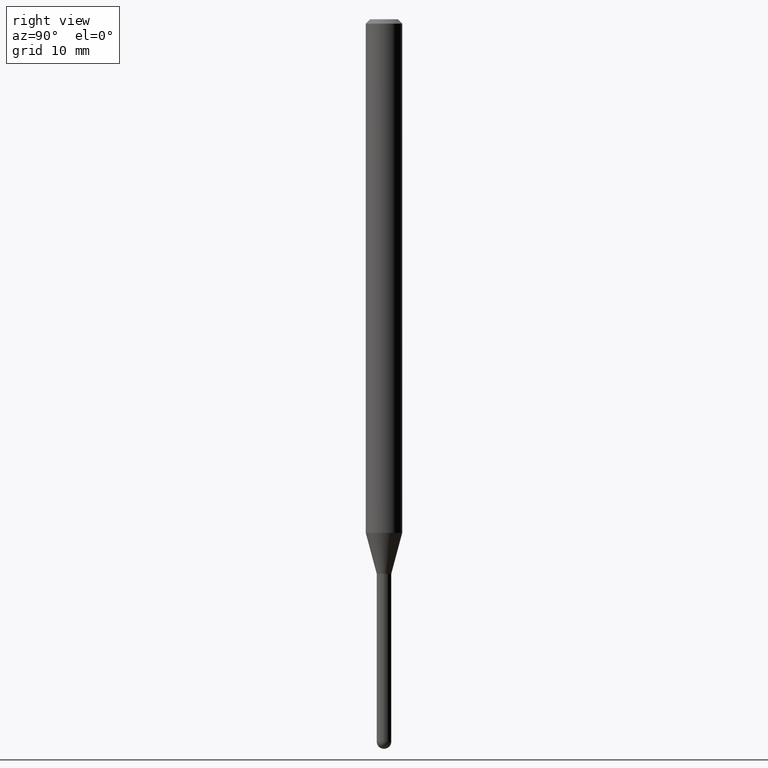
[diagram: clean part render]
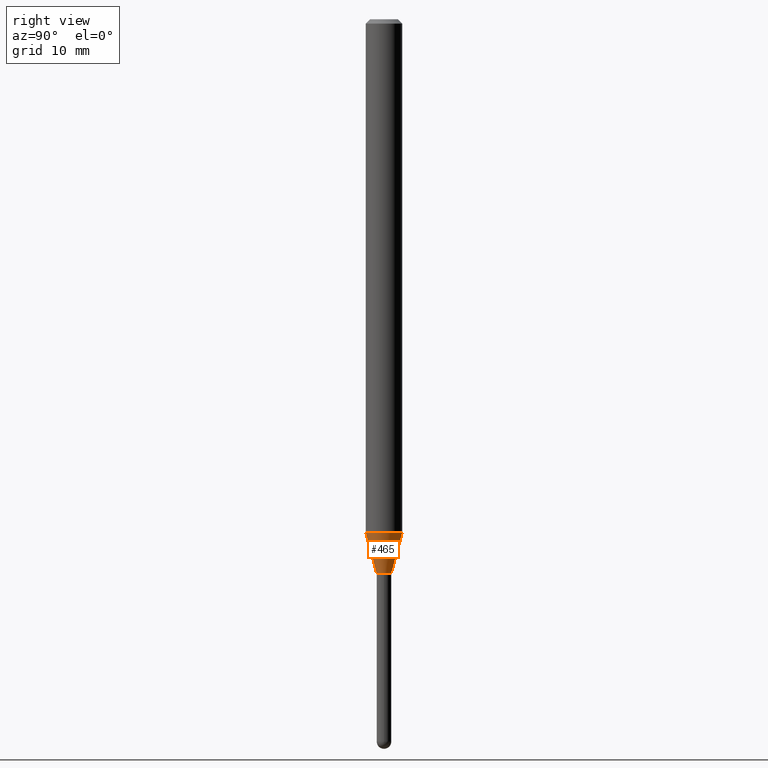
[diagram: same view with one face highlighted and labeled with its STEP entity id]
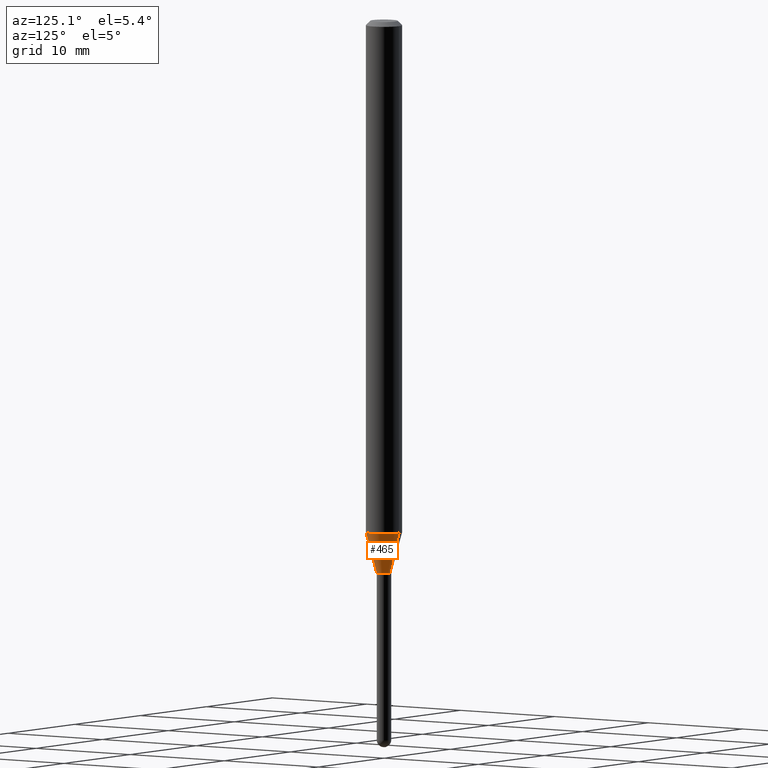
[diagram: same view with one face highlighted and labeled with its STEP entity id]
A machine part, right view. The second image highlights one B-rep face of the part: STEP entity #465.
A second angle (auxiliary view) of the same face is appended — the face is thin or edge-on in the first view.
In plain terms, the highlighted conical surface has half-angle 15 deg.
Its self-contained STEP definition (entity closure, byte-faithful):
#3 = VERTEX_POINT ( 'NONE', #57 ) ;
#31 = EDGE_CURVE ( 'NONE', #124, #472, #153, .T. ) ;
#44 = DIRECTION ( 'NONE',  ( -1.807323732225381415E-15, -0.2588190451025255134, 0.9659258262890669799 ) ) ;
#53 = VECTOR ( 'NONE', #456, 39.37007874015748143 ) ;
#57 = CARTESIAN_POINT ( 'NONE',  ( 3.108624468950883822E-16, 0.02499999999999329148, -1.900000000000000133 ) ) ;
#76 = CARTESIAN_POINT ( 'NONE',  ( 4.646345642916242448E-29, -6.633879113580735686E-15, -1.900000000000000133 ) ) ;
#85 = EDGE_LOOP ( 'NONE', ( #370, #377, #475, #99 ) ) ;
#99 = ORIENTED_EDGE ( 'NONE', *, *, #365, .F. ) ;
#115 = DIRECTION ( 'NONE',  ( -2.445445075219074648E-29, 3.491515322937228955E-15, 1.000000000000000000 ) ) ;
#124 = VERTEX_POINT ( 'NONE', #300 ) ;
#126 = EDGE_CURVE ( 'NONE', #3, #472, #229, .T. ) ;
#142 = CARTESIAN_POINT ( 'NONE',  ( 4.440892098501054119E-16, 0.06249999999999383826, -1.760048094716172074 ) ) ;
#144 = CARTESIAN_POINT ( 'NONE',  ( 4.646345642916242448E-29, -6.633879113580735686E-15, -1.900000000000000133 ) ) ;
#153 = CIRCLE ( 'NONE', #432, 0.06250000000000000000 ) ;
#175 = LINE ( 'NONE', #332, #505 ) ;
#178 = CARTESIAN_POINT ( 'NONE',  ( 4.304100945372378019E-29, -6.145234891807989298E-15, -1.760048094716171851 ) ) ;
#203 = AXIS2_PLACEMENT_3D ( 'NONE', #76, #115, #272 ) ;
#229 = LINE ( 'NONE', #376, #53 ) ;
#234 = DIRECTION ( 'NONE',  ( -6.982962677686265922E-15, -1.000000000000000000, 0.000000000000000000 ) ) ;
#271 = EDGE_CURVE ( 'NONE', #411, #3, #394, .T. ) ;
#272 = DIRECTION ( 'NONE',  ( -6.982962677686265922E-15, -1.000000000000000000, 0.000000000000000000 ) ) ;
#300 = CARTESIAN_POINT ( 'NONE',  ( -4.364351673553487258E-16, -0.06250000000000616174, -1.760048094716171407 ) ) ;
#329 = CONICAL_SURFACE ( 'NONE', #347, 0.02499999999999992506, 0.2617993877991578455 ) ;
#330 = DIRECTION ( 'NONE',  ( -6.982962677686265922E-15, -1.000000000000000000, 4.370956789862821150E-15 ) ) ;
#332 = CARTESIAN_POINT ( 'NONE',  ( -1.745740669421096812E-16, -0.02500000000000655864, -1.900000000000000133 ) ) ;
#336 = CARTESIAN_POINT ( 'NONE',  ( -1.745740669421096812E-16, -0.02500000000000655864, -1.900000000000000133 ) ) ;
#347 = AXIS2_PLACEMENT_3D ( 'NONE', #144, #378, #234 ) ;
#365 = EDGE_CURVE ( 'NONE', #411, #124, #175, .T. ) ;
#370 = ORIENTED_EDGE ( 'NONE', *, *, #271, .T. ) ;
#376 = CARTESIAN_POINT ( 'NONE',  ( 1.776356839400709582E-16, 0.02499999999999329148, -1.900000000000000133 ) ) ;
#377 = ORIENTED_EDGE ( 'NONE', *, *, #126, .T. ) ;
#378 = DIRECTION ( 'NONE',  ( -2.445445075219074648E-29, 3.491515322937228955E-15, 1.000000000000000000 ) ) ;
#394 = CIRCLE ( 'NONE', #203, 0.02499999999999992506 ) ;
#411 = VERTEX_POINT ( 'NONE', #336 ) ;
#422 = FACE_OUTER_BOUND ( 'NONE', #85, .T. ) ;
#432 = AXIS2_PLACEMENT_3D ( 'NONE', #178, #485, #330 ) ;
#456 = DIRECTION ( 'NONE',  ( 1.839019923739652380E-15, 0.2588190451025322858, 0.9659258262890650926 ) ) ;
#465 = ADVANCED_FACE ( 'NONE', ( #422 ), #329, .T. ) ;
#472 = VERTEX_POINT ( 'NONE', #142 ) ;
#475 = ORIENTED_EDGE ( 'NONE', *, *, #31, .F. ) ;
#485 = DIRECTION ( 'NONE',  ( -2.445445075219074648E-29, 3.491515322937228955E-15, 1.000000000000000000 ) ) ;
#505 = VECTOR ( 'NONE', #44, 39.37007874015748854 ) ;